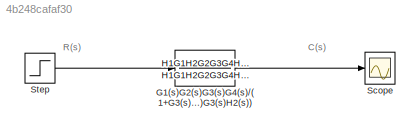
MODEL slx_4b248cafaf30
KIND model
CONFIG AbsTol = auto
CONFIG EnableMultiTasking = off
CONFIG FixedStep = auto
CONFIG MaxStep = auto
CONFIG MinStep = auto
CONFIG RelTol = 1e-3
CONFIG SampleTimeConstraint = Unconstrained
CONFIG SolverName = VariableStepAuto
CONFIG StartTime = 0.0
CONFIG StopTime = 20
BLOCK [TransferFcn] G1(s)G2(s)G3(s)G4(s)//(1+G3(s)G4(s)H3(s)+G2(s)G3(s)H2(s))
  Denominator = H1G1H2G2G3G4H3_den_sum
  Numerator = H1G1H2G2G3G4H3_num
BLOCK [Scope] Scope
  Floating = off
  NumInputPorts = 1
  ScopeSpecificationString = Simulink.scopes.TimeScopeBlockCfg('CurrentConfiguration', extmgr.ConfigurationSet(extmgr.Configuration('Core','General UI',true),extmgr.Configuration('Core','Source UI',true),extmgr.Configuration('Sources','WiredSimulink',true),extmgr.Configuration('Visuals','Time Domain',true,'SerializedDisplays',{struct('MinYLimReal','-10492426750318.50977','MaxYLimReal','1165825194481.28149','YLabelReal','','Mi...<+1598ch>
BLOCK [Step] Step
  SampleTime = 0
  Time = 0
ANNOTATION (root): C(s)
ANNOTATION (root): R(s)
LINE G1(s)G2(s)G3(s)G4(s)//(1+G3(s)G4(s)H3(s)+G2(s)G3(s)H2(s)):1 -> Scope:1
LINE Step:1 -> G1(s)G2(s)G3(s)G4(s)//(1+G3(s)G4(s)H3(s)+G2(s)G3(s)H2(s)):1
